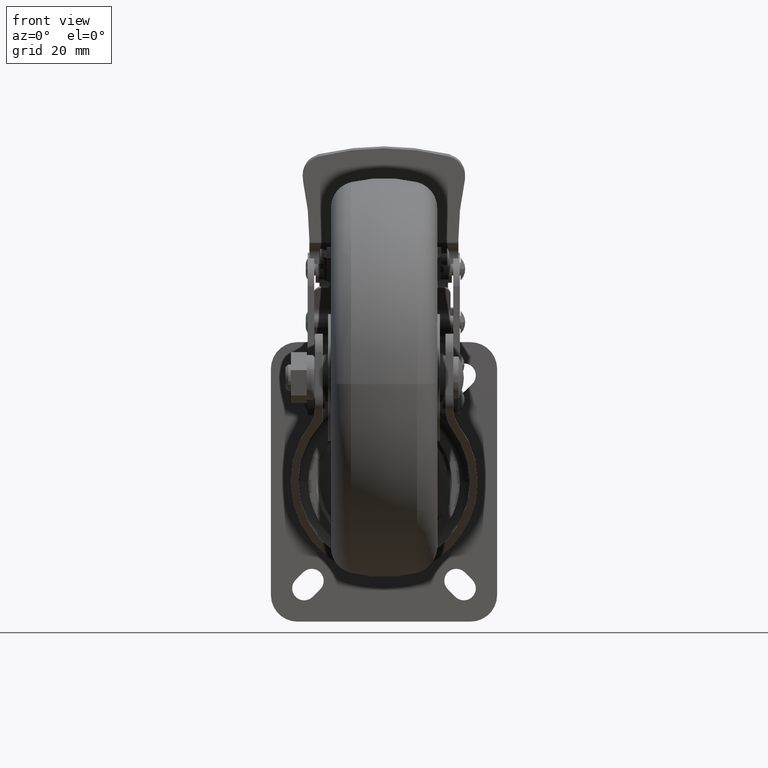
[diagram: clean part render]
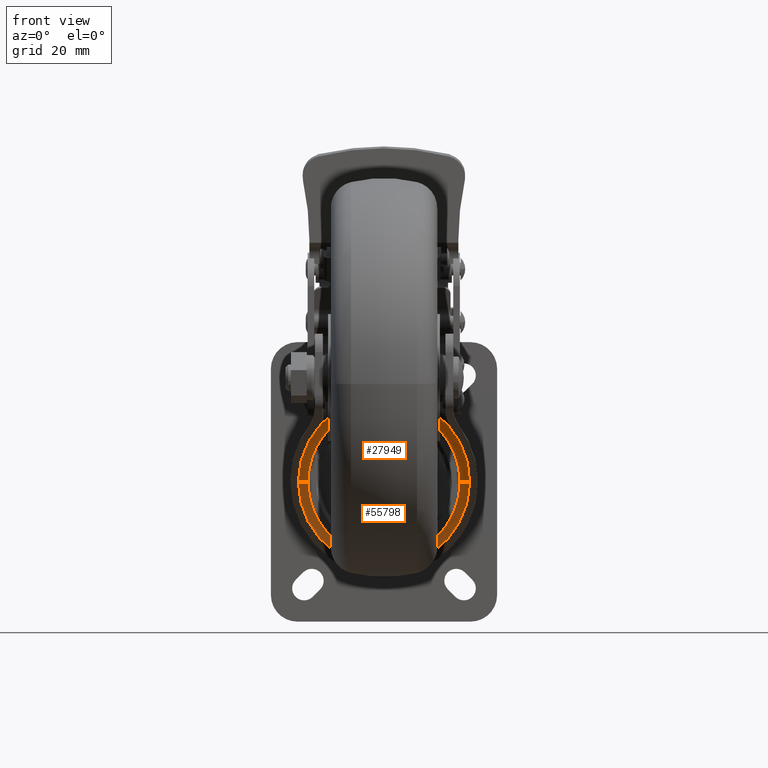
[diagram: same view with one multi-face feature highlighted, each face labeled with its STEP entity id]
A machine part, front view. The highlighted faces form ONE feature: a constant-radius fillet chain: 2 tangent blend faces with common blend radius 5 mm. The faces share edges in the B-rep.
Their STEP definitions:
[1] entity #55798 (Torus):
#597 = CARTESIAN_POINT ( 'NONE',  ( 6.802956190945174800E-015, -2.063004132075967800, 2.609024107869117900E-012 ) ) ;
#3243 = VERTEX_POINT ( 'NONE', #58629 ) ;
#3882 = CARTESIAN_POINT ( 'NONE',  ( 27.67579185452994000, 2.476656050794539400, 6.079092669414963400E-012 ) ) ;
#4409 = CARTESIAN_POINT ( 'NONE',  ( 3.136949320298060900E-012, 2.476656050795593700, -27.67579185452716200 ) ) ;
#5615 = ORIENTED_EDGE ( 'NONE', *, *, #85272, .F. ) ;
#6071 = CARTESIAN_POINT ( 'NONE',  ( 27.18061048307993800, -2.498784724112640200, 5.665298211693042800E-012 ) ) ;
#7663 = DIRECTION ( 'NONE',  ( -1.000000000000000000, -5.393771399748775600E-016, -1.130762150580721800E-013 ) ) ;
#13164 = DIRECTION ( 'NONE',  ( -1.000000000000000000, 0.0000000000000000000, -1.129537503781573800E-013 ) ) ;
#13337 = AXIS2_PLACEMENT_3D ( 'NONE', #6071, #55145, #13164 ) ;
#16345 = VERTEX_POINT ( 'NONE', #4409 ) ;
#18465 = CIRCLE ( 'NONE', #13337, 5.000021549477567700 ) ;
#20349 = VERTEX_POINT ( 'NONE', #3882 ) ;
#20894 = CIRCLE ( 'NONE', #71557, 27.67579185452994400 ) ;
#21254 = CIRCLE ( 'NONE', #83435, 5.000021549477567700 ) ;
#23629 = DIRECTION ( 'NONE',  ( 5.382898795654460500E-016, -1.000000000000000000, -3.862977452486664500E-014 ) ) ;
#27132 = DIRECTION ( 'NONE',  ( -1.130762150580721400E-013, -3.862977452486670800E-014, 1.000000000000000000 ) ) ;
#30663 = CARTESIAN_POINT ( 'NONE',  ( 7.037532473348593200E-015, -2.498784724112654800, 2.595146320061303400E-012 ) ) ;
#30708 = CARTESIAN_POINT ( 'NONE',  ( 4.359303057838712700E-015, 2.476656050794524800, 2.775557561562891400E-012 ) ) ;
#35417 = ORIENTED_EDGE ( 'NONE', *, *, #86330, .T. ) ;
#37032 = DIRECTION ( 'NONE',  ( 5.382898795654460500E-016, -1.000000000000000000, -3.862977452486664500E-014 ) ) ;
#37755 = DIRECTION ( 'NONE',  ( -1.000000000000000000, -5.327814872761948200E-016, -1.130762150580721700E-013 ) ) ;
#43082 = ORIENTED_EDGE ( 'NONE', *, *, #58959, .F. ) ;
#43254 = CARTESIAN_POINT ( 'NONE',  ( 32.16160544100191700, -2.063004132075950000, 6.244754378817712900E-012 ) ) ;
#44185 = DIRECTION ( 'NONE',  ( -1.000000000000000000, -5.382898795610779300E-016, -1.130762150580721800E-013 ) ) ;
#45803 = CIRCLE ( 'NONE', #61610, 27.67579185452994400 ) ;
#49701 = DIRECTION ( 'NONE',  ( 5.382898795654460500E-016, -1.000000000000000000, -3.862977452486664500E-014 ) ) ;
#50669 = ORIENTED_EDGE ( 'NONE', *, *, #65751, .F. ) ;
#51698 = VERTEX_POINT ( 'NONE', #43254 ) ;
#55145 = DIRECTION ( 'NONE',  ( 1.129537503781574100E-013, 3.862977452486670800E-014, -1.000000000000000000 ) ) ;
#55798 = ADVANCED_FACE ( 'NONE', ( #88153 ), #85993, .F. ) ;
#56035 = EDGE_LOOP ( 'NONE', ( #50669, #5615, #43082, #35417, #62746 ) ) ;
#56682 = CIRCLE ( 'NONE', #69511, 32.16160544100191000 ) ;
#57361 = AXIS2_PLACEMENT_3D ( 'NONE', #30663, #23629, #44185 ) ;
#58629 = CARTESIAN_POINT ( 'NONE',  ( -32.16160544100190300, -2.063004132075985100, -1.024732187385602600E-012 ) ) ;
#58959 = EDGE_CURVE ( 'NONE', #78540, #16345, #45803, .T. ) ;
#61610 = AXIS2_PLACEMENT_3D ( 'NONE', #78920, #37032, #85972 ) ;
#62746 = ORIENTED_EDGE ( 'NONE', *, *, #63505, .T. ) ;
#63505 = EDGE_CURVE ( 'NONE', #3243, #51698, #56682, .T. ) ;
#65751 = EDGE_CURVE ( 'NONE', #20349, #51698, #18465, .T. ) ;
#69009 = CARTESIAN_POINT ( 'NONE',  ( -27.18061048307992400, -2.498784724112669500, -4.783342363331335700E-013 ) ) ;
#69511 = AXIS2_PLACEMENT_3D ( 'NONE', #597, #49701, #7663 ) ;
#71557 = AXIS2_PLACEMENT_3D ( 'NONE', #30708, #79666, #37755 ) ;
#76064 = DIRECTION ( 'NONE',  ( 1.000000000000000000, 0.0000000000000000000, 1.130762150580721200E-013 ) ) ;
#78540 = VERTEX_POINT ( 'NONE', #85095 ) ;
#78920 = CARTESIAN_POINT ( 'NONE',  ( 4.359303057838712700E-015, 2.476656050794524800, 2.775557561562891400E-012 ) ) ;
#79666 = DIRECTION ( 'NONE',  ( 5.382898795654460500E-016, -1.000000000000000000, -3.862977452486664500E-014 ) ) ;
#83435 = AXIS2_PLACEMENT_3D ( 'NONE', #69009, #27132, #76064 ) ;
#85095 = CARTESIAN_POINT ( 'NONE',  ( -27.67579185452994000, 2.476656050794510100, -3.539162300823786900E-013 ) ) ;
#85272 = EDGE_CURVE ( 'NONE', #16345, #20349, #20894, .T. ) ;
#85972 = DIRECTION ( 'NONE',  ( -1.000000000000000000, -5.327814872761948200E-016, -1.130762150580721700E-013 ) ) ;
#85993 = TOROIDAL_SURFACE ( 'NONE', #57361, 27.18061048307992400, 5.000021549477566800 ) ;
#86330 = EDGE_CURVE ( 'NONE', #78540, #3243, #21254, .T. ) ;
#88153 = FACE_OUTER_BOUND ( 'NONE', #56035, .T. ) ;
[2] entity #27949 (Torus):
#1353 = CARTESIAN_POINT ( 'NONE',  ( 6.802956190945174800E-015, -2.063004132075967800, 2.609024107869117900E-012 ) ) ;
#1419 = DIRECTION ( 'NONE',  ( -1.000000000000000000, -5.382898795610779300E-016, -1.130762150580721800E-013 ) ) ;
#1758 = AXIS2_PLACEMENT_3D ( 'NONE', #27697, #76674, #34817 ) ;
#3243 = VERTEX_POINT ( 'NONE', #58629 ) ;
#3882 = CARTESIAN_POINT ( 'NONE',  ( 27.67579185452994000, 2.476656050794539400, 6.079092669414963400E-012 ) ) ;
#6071 = CARTESIAN_POINT ( 'NONE',  ( 27.18061048307993800, -2.498784724112640200, 5.665298211693042800E-012 ) ) ;
#8174 = AXIS2_PLACEMENT_3D ( 'NONE', #43533, #22381, #1419 ) ;
#8414 = DIRECTION ( 'NONE',  ( -1.000000000000000000, -5.393771399748775600E-016, -1.130762150580721800E-013 ) ) ;
#13164 = DIRECTION ( 'NONE',  ( -1.000000000000000000, 0.0000000000000000000, -1.129537503781573800E-013 ) ) ;
#13337 = AXIS2_PLACEMENT_3D ( 'NONE', #6071, #55145, #13164 ) ;
#18262 = VERTEX_POINT ( 'NONE', #60500 ) ;
#18465 = CIRCLE ( 'NONE', #13337, 5.000021549477567700 ) ;
#20349 = VERTEX_POINT ( 'NONE', #3882 ) ;
#21254 = CIRCLE ( 'NONE', #83435, 5.000021549477567700 ) ;
#21320 = EDGE_CURVE ( 'NONE', #51698, #3243, #48754, .T. ) ;
#22381 = DIRECTION ( 'NONE',  ( 5.382898795654460500E-016, -1.000000000000000000, -3.862977452486664500E-014 ) ) ;
#26362 = AXIS2_PLACEMENT_3D ( 'NONE', #71439, #29572, #78525 ) ;
#27132 = DIRECTION ( 'NONE',  ( -1.130762150580721400E-013, -3.862977452486670800E-014, 1.000000000000000000 ) ) ;
#27697 = CARTESIAN_POINT ( 'NONE',  ( 4.359303057838712700E-015, 2.476656050794524800, 2.775557561562891400E-012 ) ) ;
#27949 = ADVANCED_FACE ( 'NONE', ( #77356 ), #40141, .F. ) ;
#29572 = DIRECTION ( 'NONE',  ( 5.382898795654460500E-016, -1.000000000000000000, -3.862977452486664500E-014 ) ) ;
#34817 = DIRECTION ( 'NONE',  ( -1.000000000000000000, -5.327814872761948200E-016, -1.130762150580721700E-013 ) ) ;
#38738 = EDGE_LOOP ( 'NONE', ( #76911, #77205, #79125, #79502, #85065 ) ) ;
#40141 = TOROIDAL_SURFACE ( 'NONE', #8174, 27.18061048307992400, 5.000021549477566800 ) ;
#43254 = CARTESIAN_POINT ( 'NONE',  ( 32.16160544100191700, -2.063004132075950000, 6.244754378817712900E-012 ) ) ;
#43533 = CARTESIAN_POINT ( 'NONE',  ( 7.037532473348593200E-015, -2.498784724112654800, 2.595146320061303400E-012 ) ) ;
#45936 = AXIS2_PLACEMENT_3D ( 'NONE', #1353, #50445, #8414 ) ;
#48754 = CIRCLE ( 'NONE', #45936, 32.16160544100191000 ) ;
#50445 = DIRECTION ( 'NONE',  ( 5.382898795654460500E-016, -1.000000000000000000, -3.862977452486664500E-014 ) ) ;
#51698 = VERTEX_POINT ( 'NONE', #43254 ) ;
#55145 = DIRECTION ( 'NONE',  ( 1.129537503781574100E-013, 3.862977452486670800E-014, -1.000000000000000000 ) ) ;
#55750 = CIRCLE ( 'NONE', #26362, 27.67579185452994400 ) ;
#57755 = EDGE_CURVE ( 'NONE', #18262, #78540, #55750, .T. ) ;
#58629 = CARTESIAN_POINT ( 'NONE',  ( -32.16160544100190300, -2.063004132075985100, -1.024732187385602600E-012 ) ) ;
#59342 = EDGE_CURVE ( 'NONE', #20349, #18262, #75208, .T. ) ;
#60500 = CARTESIAN_POINT ( 'NONE',  ( -3.125387569983336300E-012, 2.476656050793455900, 27.67579185453271500 ) ) ;
#65751 = EDGE_CURVE ( 'NONE', #20349, #51698, #18465, .T. ) ;
#69009 = CARTESIAN_POINT ( 'NONE',  ( -27.18061048307992400, -2.498784724112669500, -4.783342363331335700E-013 ) ) ;
#71439 = CARTESIAN_POINT ( 'NONE',  ( 4.359303057838712700E-015, 2.476656050794524800, 2.775557561562891400E-012 ) ) ;
#75208 = CIRCLE ( 'NONE', #1758, 27.67579185452994400 ) ;
#76064 = DIRECTION ( 'NONE',  ( 1.000000000000000000, 0.0000000000000000000, 1.130762150580721200E-013 ) ) ;
#76674 = DIRECTION ( 'NONE',  ( 5.382898795654460500E-016, -1.000000000000000000, -3.862977452486664500E-014 ) ) ;
#76911 = ORIENTED_EDGE ( 'NONE', *, *, #59342, .F. ) ;
#77205 = ORIENTED_EDGE ( 'NONE', *, *, #65751, .T. ) ;
#77356 = FACE_OUTER_BOUND ( 'NONE', #38738, .T. ) ;
#78525 = DIRECTION ( 'NONE',  ( -1.000000000000000000, -5.327814872761948200E-016, -1.130762150580721700E-013 ) ) ;
#78540 = VERTEX_POINT ( 'NONE', #85095 ) ;
#79125 = ORIENTED_EDGE ( 'NONE', *, *, #21320, .T. ) ;
#79502 = ORIENTED_EDGE ( 'NONE', *, *, #86330, .F. ) ;
#83435 = AXIS2_PLACEMENT_3D ( 'NONE', #69009, #27132, #76064 ) ;
#85065 = ORIENTED_EDGE ( 'NONE', *, *, #57755, .F. ) ;
#85095 = CARTESIAN_POINT ( 'NONE',  ( -27.67579185452994000, 2.476656050794510100, -3.539162300823786900E-013 ) ) ;
#86330 = EDGE_CURVE ( 'NONE', #78540, #3243, #21254, .T. ) ;